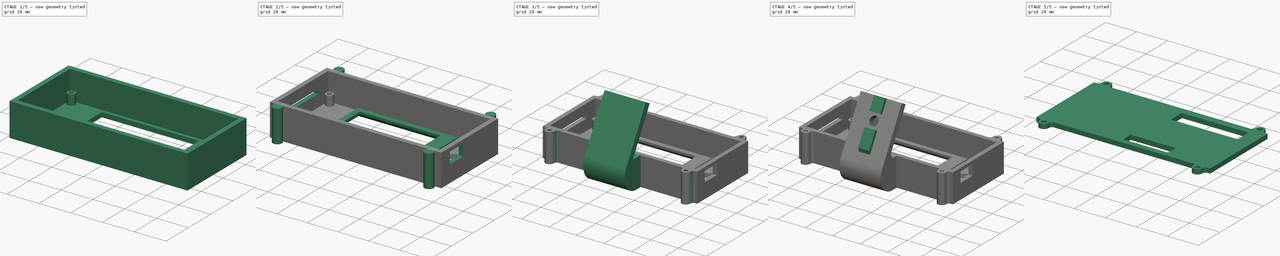
[diagram: build sequence overview — one tinted view per stage of 5, left to right]
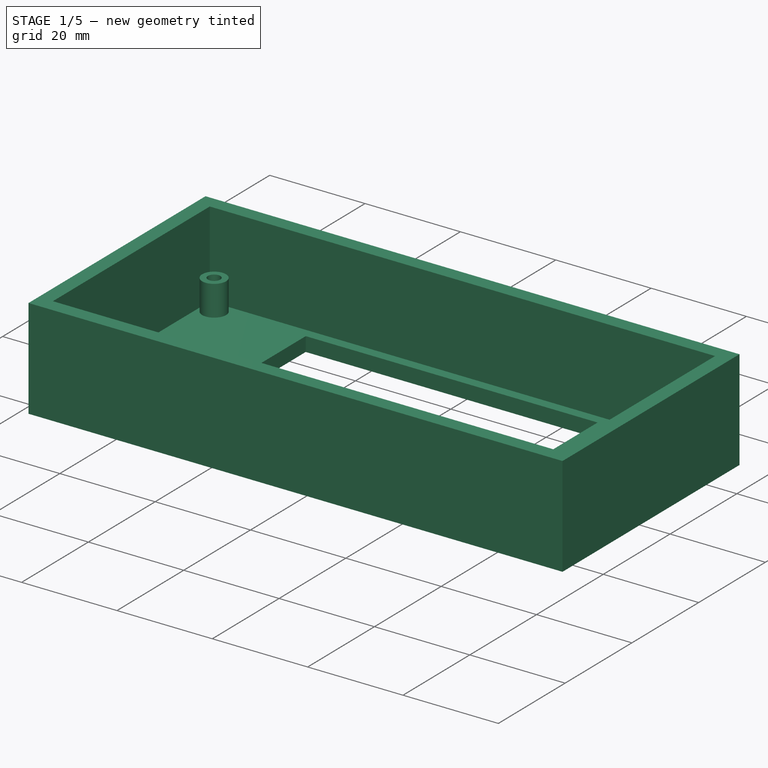
[diagram: stage 1 of 5 — iso view after this stage's code; geometry added in this stage tinted green]
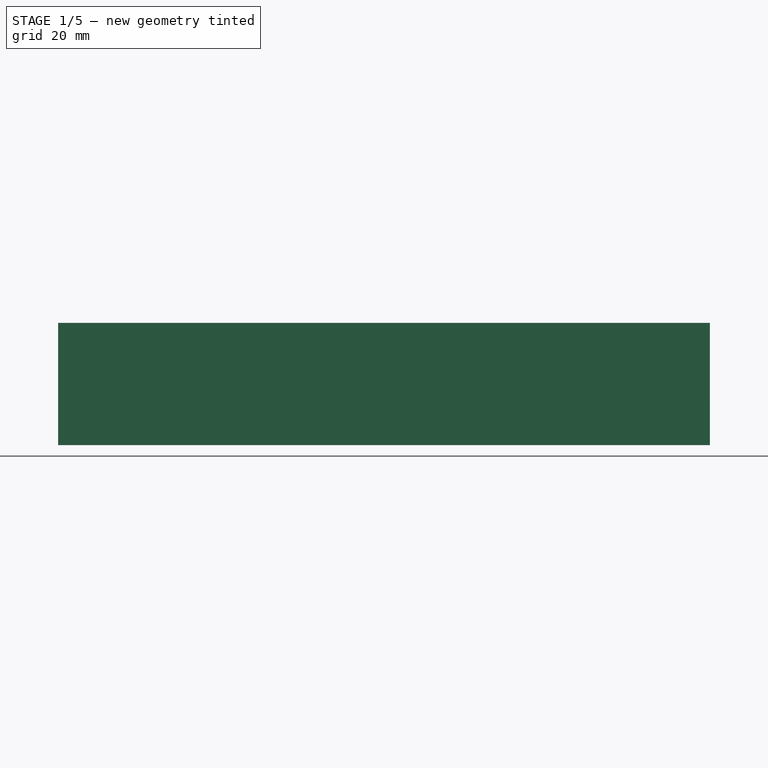
[diagram: stage 1 of 5 — front view after this stage's code; geometry added in this stage tinted green]
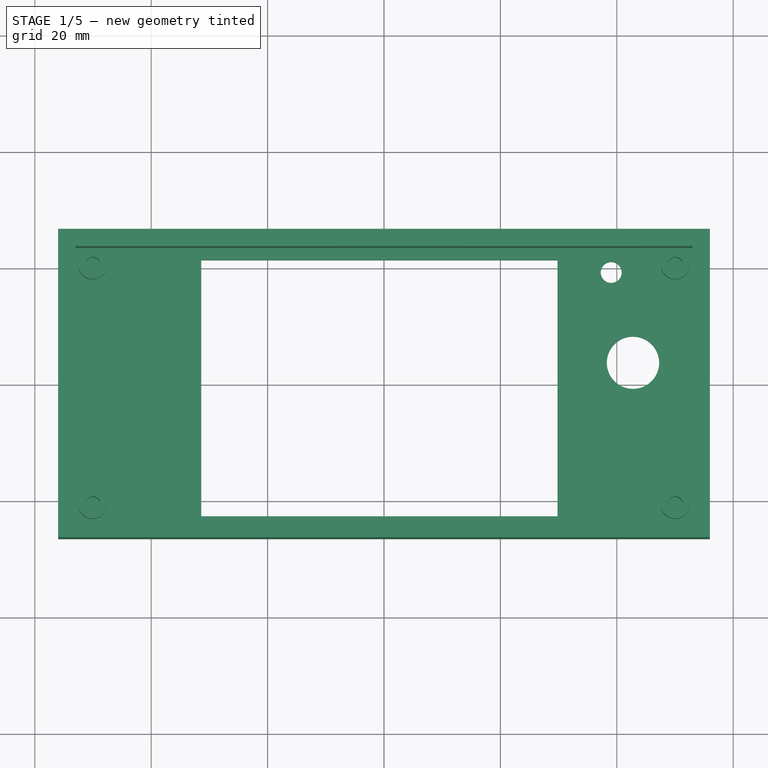
[diagram: stage 1 of 5 — top view after this stage's code; geometry added in this stage tinted green]
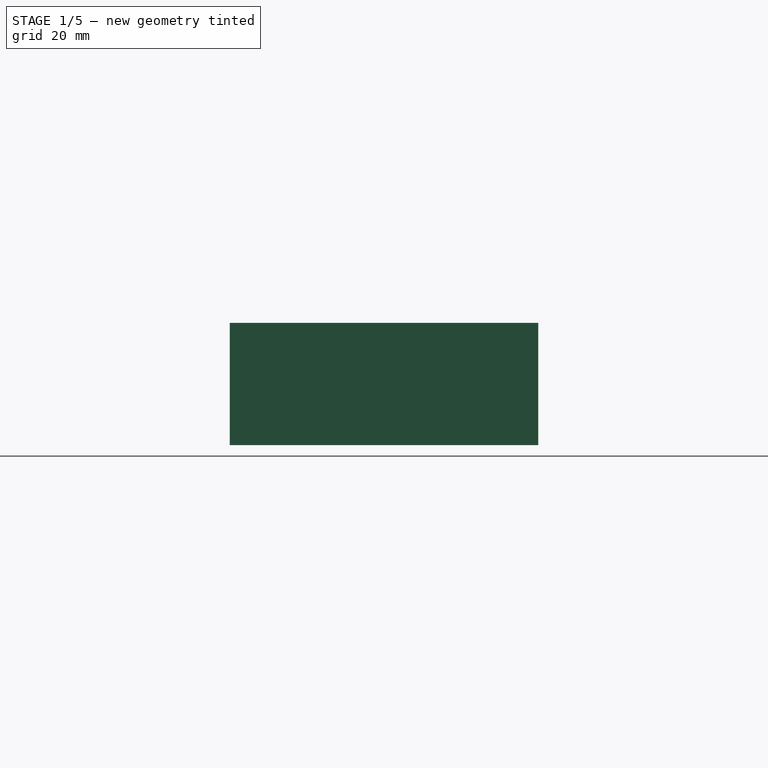
[diagram: stage 1 of 5 — right view after this stage's code; geometry added in this stage tinted green]
FCSTD DOCUMENT  (FreeCAD 0.19R)
Label: tftcover
License: All rights reserved
LicenseURL: http://en.wikipedia.org/wiki/All_rights_reserved
objects: Sketcher::SketchObject×18, PartDesign::Pocket×10, PartDesign::Pad×8, PartDesign::Fillet×4, PartDesign::Chamfer×2, PartDesign::Body×2, PartDesign::ShapeBinder×1
note: 69 computed .brp shape members not serialized (recipe doc carries the construction recipe); baked Part::Feature solids carry a one-line shape summary decoded from their .brp

FEATURE [Sketcher::SketchObject] Sketch
  FullyConstrained = true
  MapMode = 5
  Support = -> [XY_Plane]
  sketch-geometry (4):
    g0: LineSegment StartX=-56 StartY=26.5 StartZ=0 EndX=56 EndY=26.5 EndZ=0
    g1: LineSegment StartX=56 StartY=26.5 StartZ=0 EndX=56 EndY=-26.5 EndZ=0
    g2: LineSegment StartX=56 StartY=-26.5 StartZ=0 EndX=-56 EndY=-26.5 EndZ=0
    g3: LineSegment StartX=-56 StartY=-26.5 StartZ=0 EndX=-56 EndY=26.5 EndZ=0
  constraints (10):
    c: Coincident(g0,g1)
    c: Coincident(g1,g2)
    c: Coincident(g2,g3)
    c: Coincident(g3,g0)
    c: Horizontal(g2)
    c: Vertical(g3)
    c: Symmetric(g0,g0,g-2)
    c: Symmetric(g0,g1,g-1)
    c: DistanceY(g1,g1) = 53
    c: DistanceX(g0,g0) = 112
FEATURE [PartDesign::Pad] Pad
  Direction = (1,1,1)
  Length = 21
  Length2 = 100
  Profile = -> Sketch
  Type = 0
FEATURE [Sketcher::SketchObject] Sketch001
  ExternalGeometry = -> [Pad]
  FullyConstrained = true
  MapMode = 5
  Placement = pos=(0,0,21) rot=(0,0,1;0rad)
  Support = -> [Pad]
  sketch-geometry (4):
    g0: LineSegment StartX=-53 StartY=23.5 StartZ=0 EndX=53 EndY=23.5 EndZ=0
    g1: LineSegment StartX=53 StartY=23.5 StartZ=0 EndX=53 EndY=-23.5 EndZ=0
    g2: LineSegment StartX=53 StartY=-23.5 StartZ=0 EndX=-53 EndY=-23.5 EndZ=0
    g3: LineSegment StartX=-53 StartY=-23.5 StartZ=0 EndX=-53 EndY=23.5 EndZ=0
  constraints (10):
    c: Coincident(g0,g1)
    c: Coincident(g1,g2)
    c: Coincident(g2,g3)
    c: Coincident(g3,g0)
    c: Horizontal(g2)
    c: Vertical(g1)
    c: Symmetric(g0,g0,g-2)
    c: Symmetric(g0,g2,g-1)
    c: Distance(g0,g-3) = 3
    c: Distance(g-3,g3) = 3
FEATURE [PartDesign::Pocket] Pocket
  BaseFeature = -> Pad
  Length = 18
  Length2 = 100
  Profile = -> Sketch001
  Type = 0
FEATURE [Sketcher::SketchObject] Sketch002
  FullyConstrained = true
  MapMode = 5
  Placement = pos=(0,0,3) rot=(0,0,1;0rad)
  Support = -> [Pocket]
  sketch-geometry (8):
    g0: LineSegment StartX=-50.04 StartY=20.575 StartZ=0 EndX=50.04 EndY=20.575 EndZ=0
    g1: LineSegment StartX=50.04 StartY=20.575 StartZ=0 EndX=50.04 EndY=-20.575 EndZ=0
    g2: LineSegment StartX=50.04 StartY=-20.575 StartZ=0 EndX=-50.04 EndY=-20.575 EndZ=0
    g3: LineSegment StartX=-50.04 StartY=-20.575 StartZ=0 EndX=-50.04 EndY=20.575 EndZ=0
    g4: Circle CenterX=-50.04 CenterY=20.575 CenterZ=0 NormalX=0 NormalY=0 NormalZ=1 AngleXU=0 Radius=2.5
    g5: Circle CenterX=50.04 CenterY=20.575 CenterZ=0 NormalX=0 NormalY=0 NormalZ=1 AngleXU=0 Radius=2.5
    g6: Circle CenterX=-50.04 CenterY=-20.575 CenterZ=0 NormalX=0 NormalY=0 NormalZ=1 AngleXU=0 Radius=2.5
    g7: Circle CenterX=50.04 CenterY=-20.575 CenterZ=0 NormalX=0 NormalY=0 NormalZ=1 AngleXU=0 Radius=2.5
  constraints (18):
    c: Coincident(g0,g1)
    c: Coincident(g1,g2)
    c: Coincident(g2,g3)
    c: Coincident(g3,g0)
    c: Horizontal(g2)
    c: Vertical(g1)
    c: DistanceX(g0,g0) = 100.08
    c: Symmetric(g0,g0,g-2)
    c: Symmetric(g0,g2,g-1)
    c: DistanceY(g3,g3) = 41.15
    c: Coincident(g4,g0)
    c: Coincident(g5,g0)
    c: Coincident(g6,g2)
    c: Coincident(g7,g1)
    c: Radius(g6) = 2.5
    c: Equal(g6,g5)
    c: Equal(g6,g4)
    c: Equal(g6,g7)
FEATURE [PartDesign::Pad] Pad001
  BaseFeature = -> Pocket
  Direction = (1,1,1)
  Length = 6.4
  Length2 = 100
  Profile = -> Sketch002
  Type = 0
FEATURE [Sketcher::SketchObject] Sketch003
  ExternalGeometry = -> [Pad001]
  FullyConstrained = true
  MapMode = 5
  Placement = pos=(0,0,9.4) rot=(0,0,1;0rad)
  Support = -> [Pad001]
  sketch-geometry (4):
    g0: Circle CenterX=-50.04 CenterY=20.575 CenterZ=0 NormalX=0 NormalY=0 NormalZ=1 AngleXU=0 Radius=1.3
    g1: Circle CenterX=-50.04 CenterY=-20.575 CenterZ=0 NormalX=0 NormalY=0 NormalZ=1 AngleXU=0 Radius=1.3
    g2: Circle CenterX=50.04 CenterY=-20.575 CenterZ=0 NormalX=0 NormalY=0 NormalZ=1 AngleXU=0 Radius=1.3
    g3: Circle CenterX=50.04 CenterY=20.575 CenterZ=0 NormalX=0 NormalY=0 NormalZ=1 AngleXU=0 Radius=1.3
  constraints (8):
    c: Coincident(g0,g-3)
    c: Coincident(g1,g-4)
    c: Coincident(g2,g-6)
    c: Coincident(g3,g-5)
    c: Radius(g2) = 1.3
    c: Equal(g2,g3)
    c: Equal(g2,g0)
    c: Equal(g2,g1)
FEATURE [PartDesign::Pocket] Pocket001
  BaseFeature = -> Pad001
  Length = 8
  Length2 = 100
  Profile = -> Sketch003
  Type = 0
FEATURE [Sketcher::SketchObject] Sketch005
  FullyConstrained = false
  MapMode = 5
  Placement = pos=(0,0,0) rot=(1,0,0;3.14159rad)
  Support = -> [Pocket001]
  sketch-geometry (16):
    g0: LineSegment StartX=-52.5 StartY=23 StartZ=0 EndX=52.5 EndY=23 EndZ=0
    g1: LineSegment StartX=52.5 StartY=23 StartZ=0 EndX=52.5 EndY=-23 EndZ=0
    g2: LineSegment StartX=52.5 StartY=-23 StartZ=0 EndX=-52.5 EndY=-23 EndZ=0
    g3: LineSegment StartX=-52.5 StartY=-23 StartZ=0 EndX=-52.5 EndY=23 EndZ=0
    g4: LineSegment StartX=-31.4 StartY=22.6 StartZ=0 EndX=29.82 EndY=22.6 EndZ=0
    g5: LineSegment StartX=29.82 StartY=22.6 StartZ=0 EndX=29.82 EndY=-21.4 EndZ=0
    g6: LineSegment StartX=29.82 StartY=-21.4 StartZ=0 EndX=-31.4 EndY=-21.4 EndZ=0
    g7: LineSegment StartX=-31.4 StartY=-21.4 StartZ=0 EndX=-31.4 EndY=22.6 EndZ=0
    g8: Circle CenterX=39.04 CenterY=-19.31 CenterZ=0 NormalX=0 NormalY=0 NormalZ=1 AngleXU=0 Radius=1.8
    g9: Circle CenterX=42.78 CenterY=-3.8 CenterZ=0 NormalX=0 NormalY=0 NormalZ=1 AngleXU=0 Radius=4.5
    g10: LineSegment StartX=36.78 StartY=2.2 StartZ=0 EndX=48.78 EndY=2.2 EndZ=0
    g11: LineSegment StartX=48.78 StartY=2.2 StartZ=0 EndX=48.78 EndY=-9.8 EndZ=0
    g12: LineSegment StartX=48.78 StartY=-9.8 StartZ=0 EndX=36.78 EndY=-9.8 EndZ=0
    g13: LineSegment StartX=36.78 StartY=-9.8 StartZ=0 EndX=36.78 EndY=2.2 EndZ=0
    g14: LineSegment StartX=42.78 StartY=2.2 StartZ=0 EndX=42.78 EndY=-3.8 EndZ=0
    g15: LineSegment StartX=48.78 StartY=-3.8 StartZ=0 EndX=42.78 EndY=-3.8 EndZ=0
  constraints (43):
    c: Coincident(g0,g1)
    c: Coincident(g1,g2)
    c: Coincident(g2,g3)
    c: Coincident(g3,g0)
    c: Horizontal(g2)
    c: Vertical(g1)
    c: Symmetric(g0,g2,g-1)
    c: Symmetric(g0,g0,g-2)
    c: DistanceX(g0,g0) = 105
    c: DistanceY(g3,g3) = 46
    c: Coincident(g4,g5)
    c: Coincident(g5,g6)
    c: Coincident(g6,g7)
    c: Coincident(g7,g4)
    c: Horizontal(g4)
    c: Horizontal(g6)
    c: Vertical(g7)
    c: DistanceY(g7,g7) = 44
    c: Distance(g5,g1) = 22.68
    c: Distance(g6,g1) = 83.9
    c: Radius(g8) = 1.8
    c: Distance(g8,g1) = 13.46
    c: Distance(g8,g2) = 3.69
    c: Distance(g6,g2) = 1.6
    c: Radius(g9) = 4.5
    c: Coincident(g10,g11)
    c: Coincident(g11,g12)
    c: Coincident(g12,g13)
    c: Coincident(g13,g10)
    c: Horizontal(g10)
    c: Horizontal(g12)
    c: Vertical(g11)
    c: Vertical(g13)
    c: DistanceX(g10,g10) = 12
    c: Equal(g11,g10)
    c: PointOnObject(g14,g10)
    c: PointOnObject(g15,g11)
    c: Symmetric(g10,g10,g14)
    c: Symmetric(g11,g10,g15)
    c: Coincident(g14,g15)
    c: Coincident(g14,g9)
    c: Distance(g11,g0) = 32.8
    c: Distance(g10,g1) = 15.72
FEATURE [PartDesign::Pocket] Pocket002
  BaseFeature = -> Pocket001
  Length = 5
  Length2 = 100
  Profile = -> Sketch005
  Type = 0
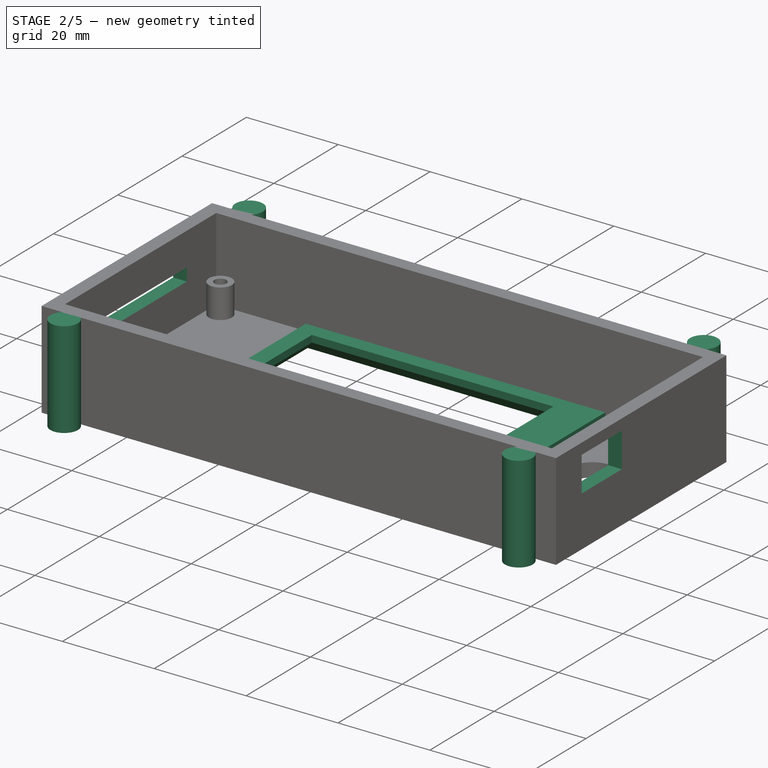
[diagram: stage 2 of 5 — iso view after this stage's code; geometry added in this stage tinted green]
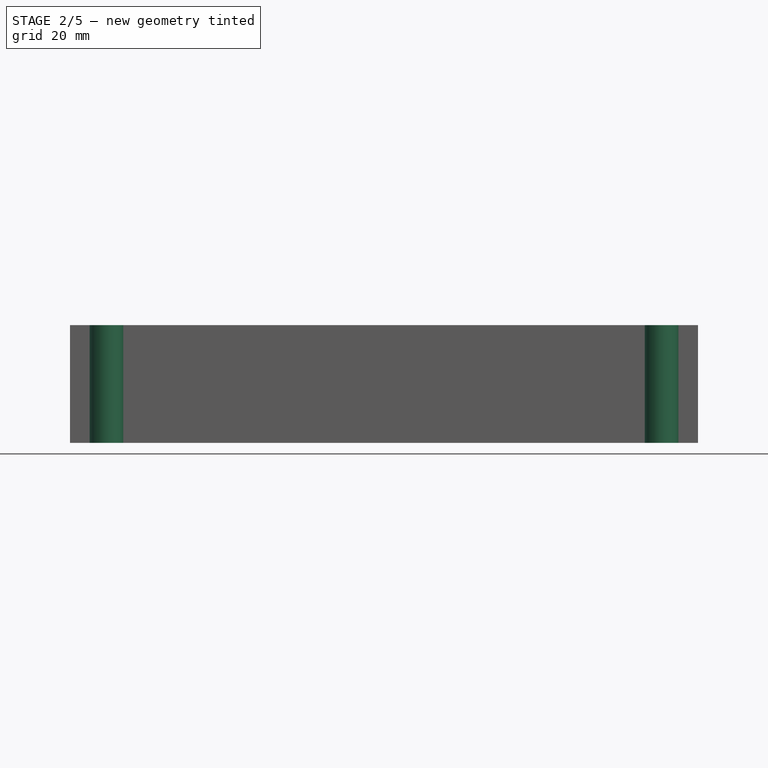
[diagram: stage 2 of 5 — front view after this stage's code; geometry added in this stage tinted green]
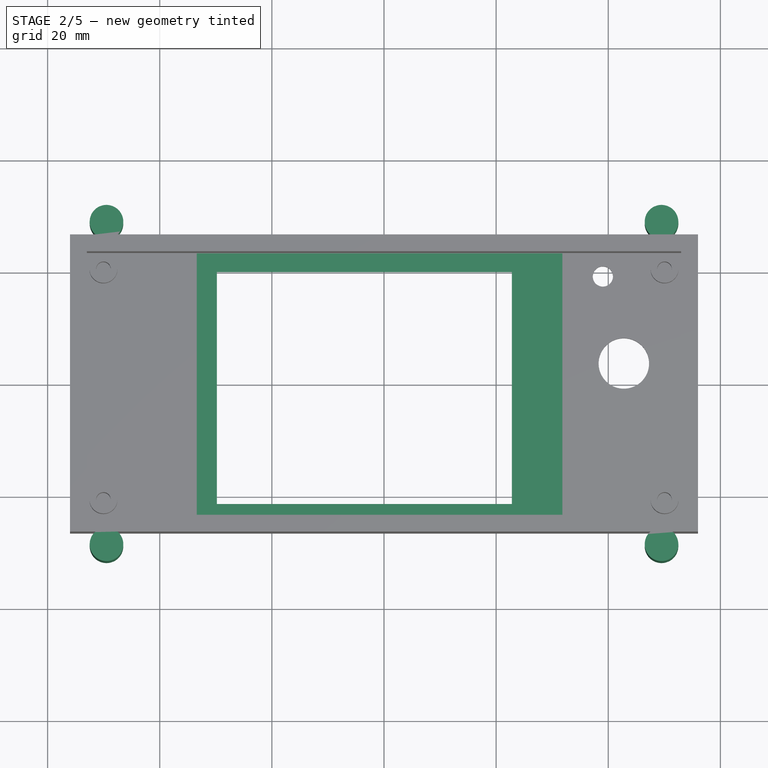
[diagram: stage 2 of 5 — top view after this stage's code; geometry added in this stage tinted green]
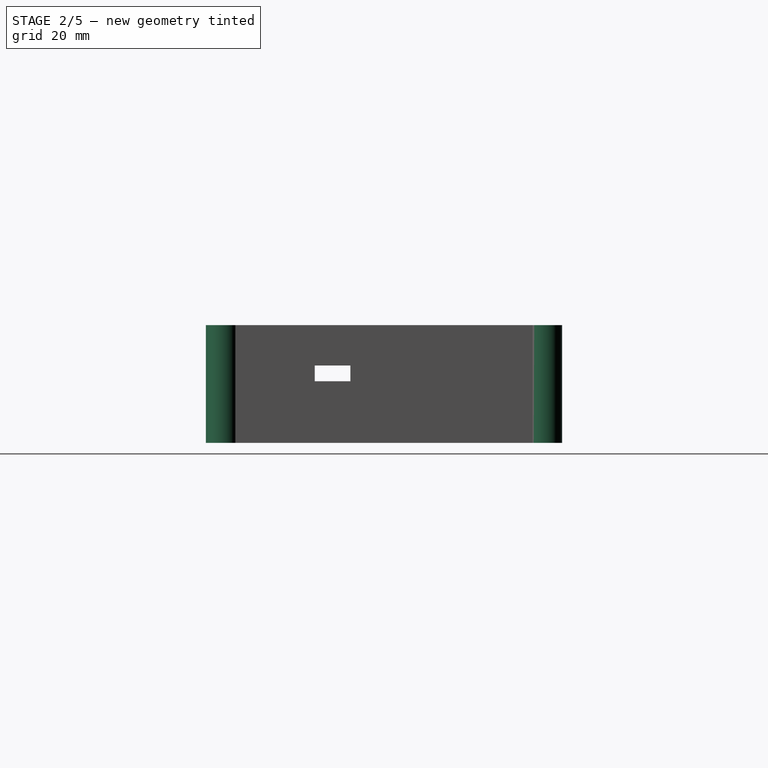
[diagram: stage 2 of 5 — right view after this stage's code; geometry added in this stage tinted green]
FEATURE [Sketcher::SketchObject] Sketch006
  ExternalGeometry = -> [Pocket002]
  FullyConstrained = true
  MapMode = 5
  Placement = pos=(53,0,0) rot=(0.57735,-0.57735,-0.57735;2.0944rad)
  Support = -> [Pocket002]
  sketch-geometry (8):
    g0: LineSegment StartX=-23 StartY=11 StartZ=0 EndX=23 EndY=11 EndZ=0
    g1: LineSegment StartX=23 StartY=11 StartZ=0 EndX=23 EndY=9.4 EndZ=0
    g2: LineSegment StartX=23 StartY=9.4 StartZ=0 EndX=-23 EndY=9.4 EndZ=0
    g3: LineSegment StartX=-23 StartY=9.4 StartZ=0 EndX=-23 EndY=11 EndZ=0
    g4: LineSegment StartX=6 StartY=18.6 StartZ=0 EndX=18.5 EndY=18.6 EndZ=0
    g5: LineSegment StartX=18.5 StartY=18.6 StartZ=0 EndX=18.5 EndY=11 EndZ=0
    g6: LineSegment StartX=18.5 StartY=11 StartZ=0 EndX=6 EndY=11 EndZ=0
    g7: LineSegment StartX=6 StartY=11 StartZ=0 EndX=6 EndY=18.6 EndZ=0
  constraints (23):
    c: Coincident(g0,g1)
    c: Coincident(g1,g2)
    c: Coincident(g2,g3)
    c: Coincident(g3,g0)
    c: Horizontal(g2)
    c: Vertical(g1)
    c: Vertical(g3)
    c: DistanceY(g3,g3) = 1.6
    c: Distance(g1,g-3) = 6.4
    c: Symmetric(g0,g0,g-2)
    c: DistanceX(g0,g0) = 46
    c: Coincident(g4,g5)
    c: Coincident(g5,g6)
    c: Coincident(g6,g7)
    c: Coincident(g7,g4)
    c: Horizontal(g4)
    c: Horizontal(g6)
    c: Vertical(g5)
    c: Vertical(g7)
    c: PointOnObject(g5,g0)
    c: Distance(g4,g1) = 4.5
    c: Distance(g4,g1) = 17
    c: DistanceY(g7,g7) = 7.6
FEATURE [PartDesign::Pocket] Pocket003
  BaseFeature = -> Pocket002
  Length = 5
  Length2 = 100
  Profile = -> Sketch006
  Type = 0
FEATURE [Sketcher::SketchObject] Sketch007
  ExternalGeometry = -> [Pocket003]
  FullyConstrained = true
  MapMode = 5
  Placement = pos=(-53,0,0) rot=(0.57735,0.57735,0.57735;2.0944rad)
  Support = -> [Pocket003]
  sketch-geometry (8):
    g0: LineSegment StartX=-23 StartY=11 StartZ=0 EndX=23 EndY=11 EndZ=0
    g1: LineSegment StartX=23 StartY=11 StartZ=0 EndX=23 EndY=9.4 EndZ=0
    g2: LineSegment StartX=23 StartY=9.4 StartZ=0 EndX=-23 EndY=9.4 EndZ=0
    g3: LineSegment StartX=-23 StartY=9.4 StartZ=0 EndX=-23 EndY=11 EndZ=0
    g4: LineSegment StartX=-12.35 StartY=13.8 StartZ=0 EndX=14.4 EndY=13.8 EndZ=0
    g5: LineSegment StartX=14.4 StartY=13.8 StartZ=0 EndX=14.4 EndY=11 EndZ=0
    g6: LineSegment StartX=14.4 StartY=11 StartZ=0 EndX=-12.35 EndY=11 EndZ=0
    g7: LineSegment StartX=-12.35 StartY=11 StartZ=0 EndX=-12.35 EndY=13.8 EndZ=0
  constraints (23):
    c: Coincident(g0,g1)
    c: Coincident(g1,g2)
    c: Coincident(g2,g3)
    c: Coincident(g3,g0)
    c: Horizontal(g2)
    c: Vertical(g1)
    c: Vertical(g3)
    c: Symmetric(g0,g0,g-2)
    c: DistanceX(g0,g0) = 46
    c: DistanceY(g1,g1) = 1.6
    c: Distance(g1,g-3) = 6.4
    c: Coincident(g4,g5)
    c: Coincident(g5,g6)
    c: Coincident(g6,g7)
    c: Coincident(g7,g4)
    c: Horizontal(g4)
    c: Horizontal(g6)
    c: Vertical(g5)
    c: Vertical(g7)
    c: PointOnObject(g5,g0)
    c: Distance(g5,g1) = 8.6
    c: Distance(g6,g1) = 35.35
    c: DistanceY(g7,g7) = 2.8
FEATURE [PartDesign::Pocket] Pocket004
  BaseFeature = -> Pocket003
  Length = 5
  Length2 = 100
  Profile = -> Sketch007
  Type = 0
FEATURE [Sketcher::SketchObject] Sketch008
  ExternalGeometry = -> [Pocket004]
  FullyConstrained = true
  MapMode = 5
  Placement = pos=(0,0,0) rot=(1,0,0;3.14159rad)
  Support = -> [Pocket004]
  sketch-geometry (8):
    g0: LineSegment StartX=-33.4 StartY=24.6 StartZ=0 EndX=31.82 EndY=24.6 EndZ=0
    g1: LineSegment StartX=31.82 StartY=24.6 StartZ=0 EndX=31.82 EndY=-23.4 EndZ=0
    g2: LineSegment StartX=31.82 StartY=-23.4 StartZ=0 EndX=-33.4 EndY=-23.4 EndZ=0
    g3: LineSegment StartX=-33.4 StartY=-23.4 StartZ=0 EndX=-33.4 EndY=24.6 EndZ=0
    g4: LineSegment StartX=-29.8 StartY=21.3 StartZ=0 EndX=22.82 EndY=21.3 EndZ=0
    g5: LineSegment StartX=22.82 StartY=21.3 StartZ=0 EndX=22.82 EndY=-20.1 EndZ=0
    g6: LineSegment StartX=22.82 StartY=-20.1 StartZ=0 EndX=-29.8 EndY=-20.1 EndZ=0
    g7: LineSegment StartX=-29.8 StartY=-20.1 StartZ=0 EndX=-29.8 EndY=21.3 EndZ=0
  constraints (24):
    c: Coincident(g0,g1)
    c: Coincident(g1,g2)
    c: Coincident(g2,g3)
    c: Coincident(g3,g0)
    c: Horizontal(g0)
    c: Horizontal(g2)
    c: Vertical(g1)
    c: Vertical(g3)
    c: Distance(g0,g-3) = 2
    c: Distance(g-6,g3) = 2
    c: Distance(g-4,g1) = 2
    c: Distance(g-5,g2) = 2
    c: Coincident(g4,g5)
    c: Coincident(g5,g6)
    c: Coincident(g6,g7)
    c: Coincident(g7,g4)
    c: Horizontal(g4)
    c: Horizontal(g6)
    c: Vertical(g5)
    c: Vertical(g7)
    c: Distance(g6,g-6) = 1.6
    c: Distance(g4,g-3) = 1.3
    c: Distance(g6,g-5) = 1.3
    c: Distance(g-5,g5) = 7
FEATURE [PartDesign::Pad] Pad002
  BaseFeature = -> Pocket004
  Direction = (1,1,1)
  Length = 4.5
  Length2 = 100
  Profile = -> Sketch008
  Refine = true
  Reversed = true
  Type = 0
FEATURE [PartDesign::Chamfer] Chamfer
  Angle = 45
  Base = -> Pad002 [Edge89,Edge85,Edge90,Edge87]
  BaseFeature = -> Pad002
  ChamferType = 0
  FlipDirection = false
  Size = 3
  Size2 = 1
  SupportTransform = false
FEATURE [Sketcher::SketchObject] Sketch009
  ExternalGeometry = -> [Chamfer]
  FullyConstrained = false
  MapMode = 5
  Placement = pos=(0,0,0) rot=(1,0,0;3.14159rad)
  Support = -> [Chamfer]
  sketch-geometry (4):
    g0: Circle CenterX=-49.5 CenterY=28.7665 CenterZ=0 NormalX=0 NormalY=0 NormalZ=1 AngleXU=0 Radius=3
    g1: Circle CenterX=49.5 CenterY=28.7665 CenterZ=0 NormalX=0 NormalY=0 NormalZ=1 AngleXU=0 Radius=3
    g2: Circle CenterX=-49.5 CenterY=-28.7665 CenterZ=0 NormalX=0 NormalY=0 NormalZ=1 AngleXU=0 Radius=3
    g3: Circle CenterX=49.5 CenterY=-28.7665 CenterZ=0 NormalX=0 NormalY=0 NormalZ=1 AngleXU=0 Radius=3
  constraints (6):
    c: Symmetric(g3,g2,g-2)
    c: Symmetric(g0,g1,g-2)
    c: Radius(g2) = 3
    c: Equal(g2,g0)
    c: Symmetric(g1,g3,g-1)
    c: Distance(g0,g1) = 99
FEATURE [PartDesign::Pad] Pad003
  BaseFeature = -> Chamfer
  Direction = (1,1,1)
  Length = 21
  Length2 = 100
  Profile = -> Sketch009
  Refine = true
  Reversed = true
  Type = 0
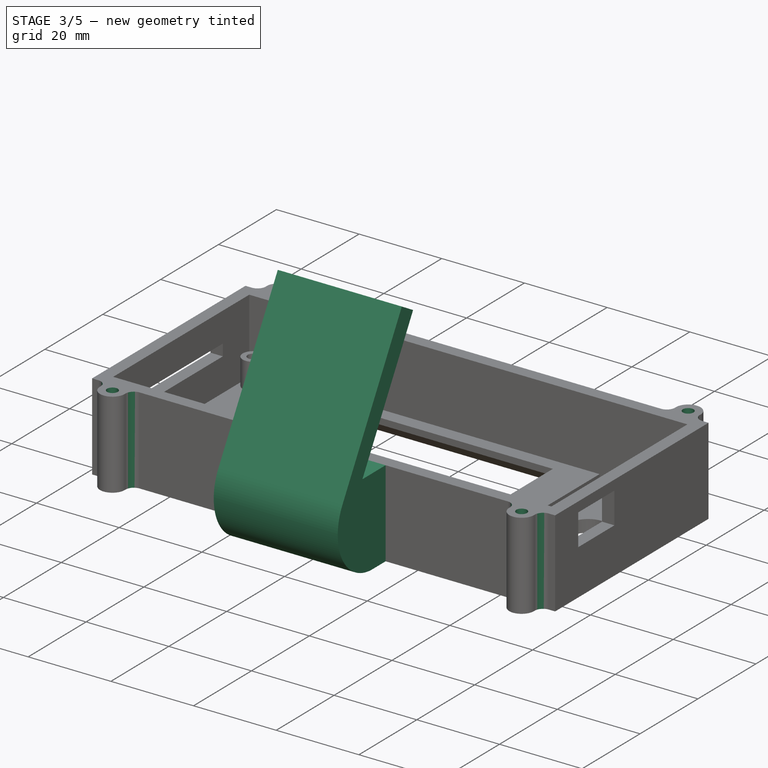
[diagram: stage 3 of 5 — iso view after this stage's code; geometry added in this stage tinted green]
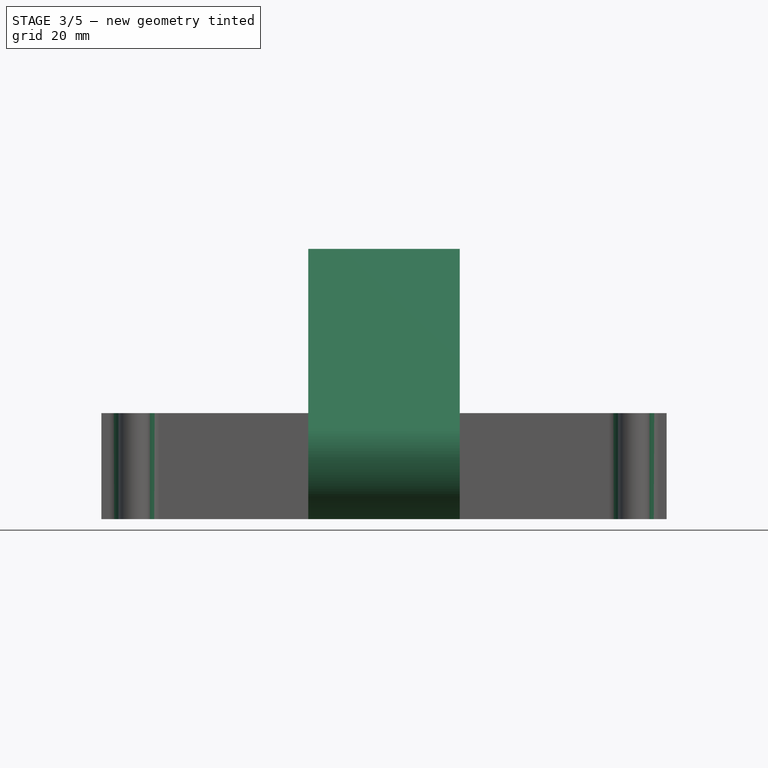
[diagram: stage 3 of 5 — front view after this stage's code; geometry added in this stage tinted green]
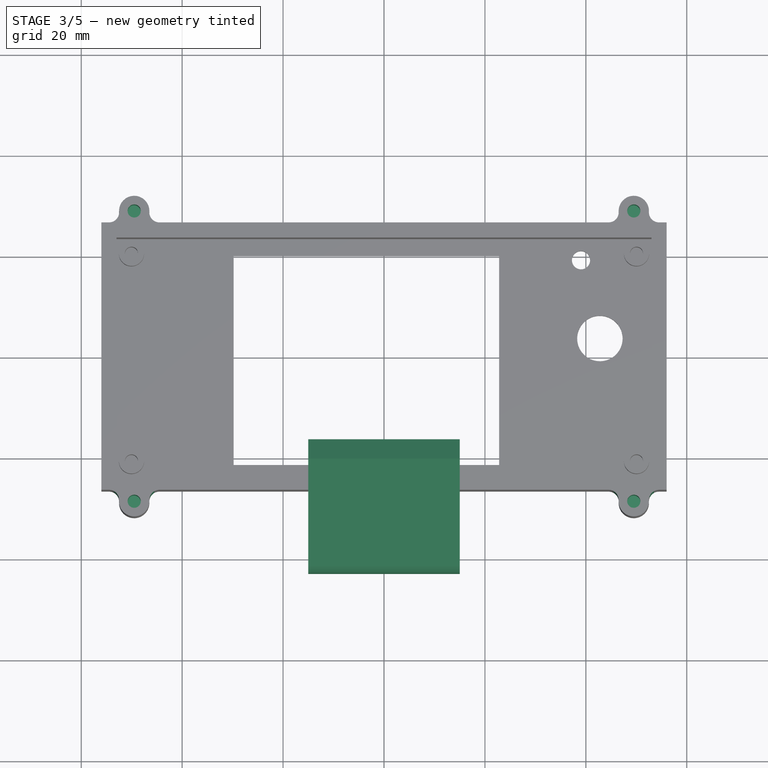
[diagram: stage 3 of 5 — top view after this stage's code; geometry added in this stage tinted green]
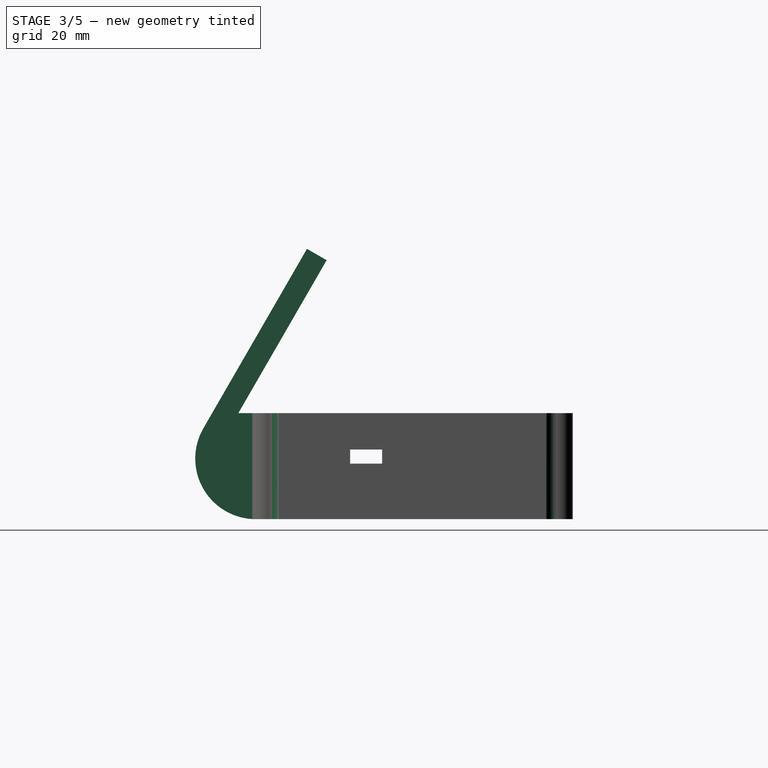
[diagram: stage 3 of 5 — right view after this stage's code; geometry added in this stage tinted green]
FEATURE [PartDesign::Fillet] Fillet
  Base = -> Pad003 [Edge95,Edge84,Edge132,Edge131,Edge129,Edge74,Edge134,Edge76]
  BaseFeature = -> Pad003
  Radius = 2
  SupportTransform = false
FEATURE [Sketcher::SketchObject] Sketch010
  ExternalGeometry = -> [Fillet]
  FullyConstrained = true
  MapMode = 5
  Placement = pos=(0,0,21) rot=(0,0,1;0rad)
  Support = -> [Fillet]
  sketch-geometry (4):
    g0: Circle CenterX=-49.5 CenterY=28.7665 CenterZ=0 NormalX=0 NormalY=0 NormalZ=1 AngleXU=0 Radius=1.3
    g1: Circle CenterX=49.5 CenterY=28.7665 CenterZ=0 NormalX=0 NormalY=0 NormalZ=1 AngleXU=0 Radius=1.3
    g2: Circle CenterX=-49.5 CenterY=-28.7665 CenterZ=0 NormalX=0 NormalY=0 NormalZ=1 AngleXU=0 Radius=1.3
    g3: Circle CenterX=49.5 CenterY=-28.7665 CenterZ=0 NormalX=0 NormalY=0 NormalZ=1 AngleXU=0 Radius=1.3
  constraints (8):
    c: Coincident(g0,g-3)
    c: Coincident(g1,g-5)
    c: Coincident(g2,g-4)
    c: Coincident(g3,g-6)
    c: Radius(g0) = 1.3
    c: Equal(g0,g1)
    c: Equal(g0,g2)
    c: Equal(g0,g3)
FEATURE [PartDesign::Pocket] Pocket005
  BaseFeature = -> Fillet
  Length = 10
  Length2 = 100
  Profile = -> Sketch010
  Type = 0
FEATURE [Sketcher::SketchObject] Sketch011
  ExternalGeometry = -> [Pocket005]
  FullyConstrained = true
  MapMode = 5
  Placement = pos=(0,0,0) rot=(0.57735,0.57735,0.57735;2.0944rad)
  Support = -> [YZ_Plane]
  sketch-geometry (6):
    g0: LineSegment StartX=-26.5 StartY=0 StartZ=0 EndX=-51.8205 EndY=0 EndZ=0
    g1: LineSegment StartX=-51.8205 StartY=0 StartZ=0 EndX=-20.8971 EndY=53.5609 EndZ=0
    g2: LineSegment StartX=-20.8971 StartY=53.5609 StartZ=0 EndX=-17 EndY=51.3109 EndZ=0
    g3: LineSegment StartX=-17 StartY=51.3109 StartZ=0 EndX=-34.5 EndY=21 EndZ=0
    g4: LineSegment StartX=-34.5 StartY=21 StartZ=0 EndX=-26.5 EndY=21 EndZ=0
    g5: LineSegment StartX=-26.5 StartY=21 StartZ=0 EndX=-26.5 EndY=0 EndZ=0
  constraints (18):
    c: PointOnObject(g0,g-3)
    c: PointOnObject(g0,g-1)
    c: Horizontal(g0)
    c: Coincident(g0,g1)
    c: Coincident(g1,g2)
    c: Coincident(g2,g3)
    c: Coincident(g3,g4)
    c: PointOnObject(g4,g-3)
    c: Horizontal(g4)
    c: Coincident(g4,g5)
    c: Coincident(g5,g0)
    c: Angle(g4,g3) = 1.0472
    c: Parallel(g1,g3)
    c: Perpendicular(g2,g1)
    c: Distance(g2) = 4.5
    c: PointOnObject(g4,g-4)
    c: Distance(g3) = 35
    c: DistanceX(g4,g4) = 8
FEATURE [PartDesign::Pad] Pad004
  BaseFeature = -> Pocket005
  Direction = (1,1,1)
  Length = 30
  Length2 = 100
  Midplane = true
  Profile = -> Sketch011
  Type = 0
FEATURE [PartDesign::Fillet] Fillet001
  Base = -> Pad004 [Edge86]
  BaseFeature = -> Pad004
  Radius = 12
  SupportTransform = false
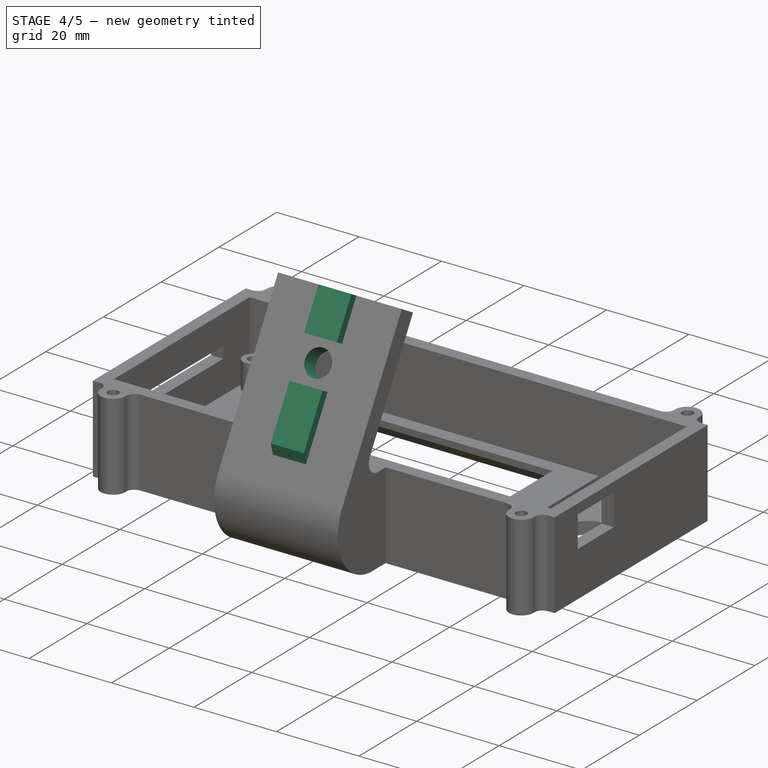
[diagram: stage 4 of 5 — iso view after this stage's code; geometry added in this stage tinted green]
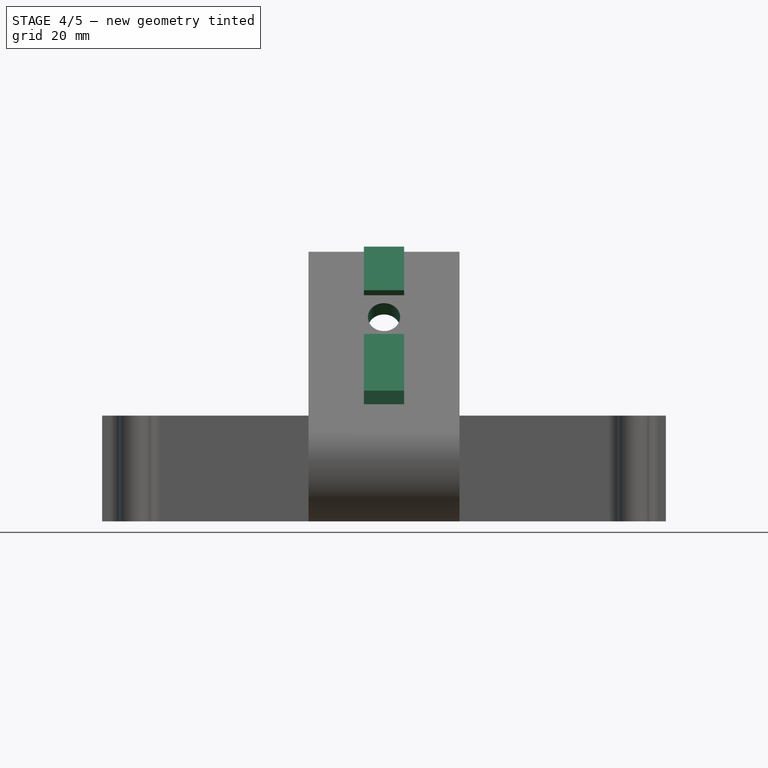
[diagram: stage 4 of 5 — front view after this stage's code; geometry added in this stage tinted green]
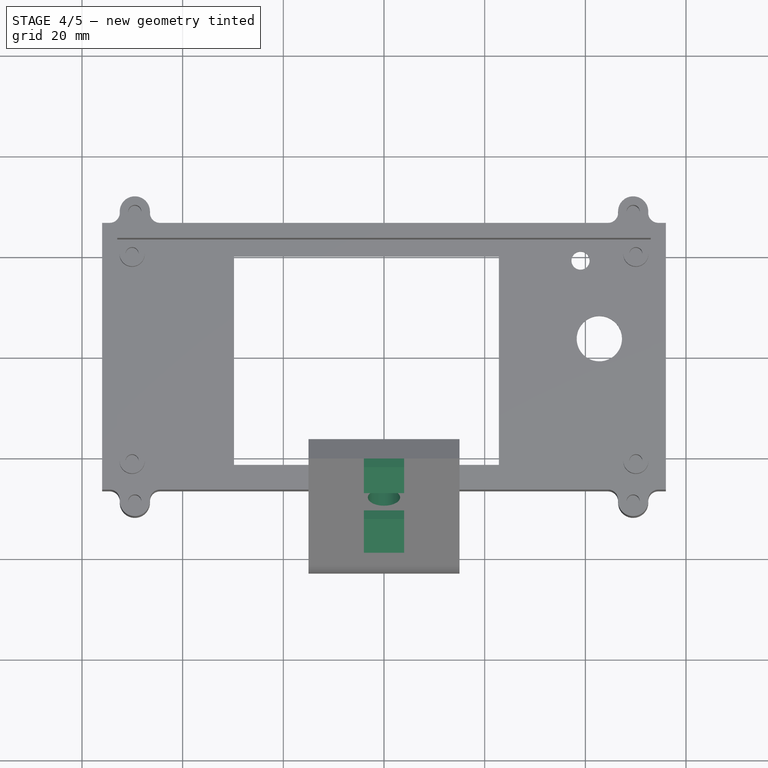
[diagram: stage 4 of 5 — top view after this stage's code; geometry added in this stage tinted green]
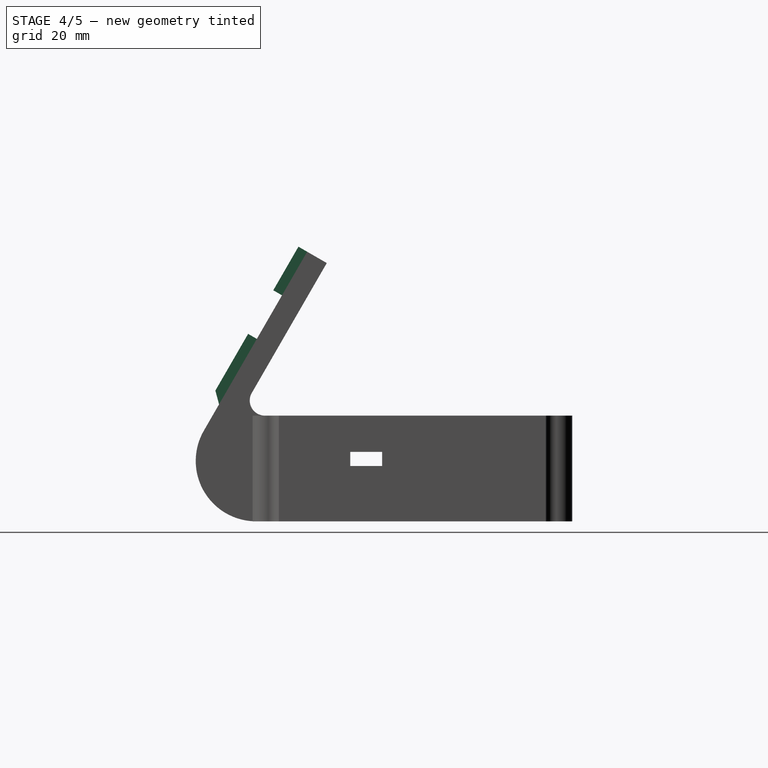
[diagram: stage 4 of 5 — right view after this stage's code; geometry added in this stage tinted green]
FEATURE [PartDesign::Fillet] Fillet002
  Base = -> Fillet001 [Edge52]
  BaseFeature = -> Fillet001
  Radius = 3
  SupportTransform = false
FEATURE [Sketcher::SketchObject] Sketch012
  ExternalGeometry = -> [Fillet002]
  FullyConstrained = true
  MapMode = 5
  Placement = pos=(-1.49e-14,-38.8654,22.4389) rot=(1,0,0;1.0472rad)
  Support = -> [Fillet002]
  sketch-geometry (4):
    g0: LineSegment StartX=-4 StartY=35.9365 StartZ=0 EndX=4 EndY=35.9365 EndZ=0
    g1: LineSegment StartX=4 StartY=35.9365 StartZ=0 EndX=4 EndY=0.936533 EndZ=0
    g2: LineSegment StartX=4 StartY=0.936533 StartZ=0 EndX=-4 EndY=0.936533 EndZ=0
    g3: LineSegment StartX=-4 StartY=0.936533 StartZ=0 EndX=-4 EndY=35.9365 EndZ=0
  constraints (11):
    c: Coincident(g0,g1)
    c: Coincident(g1,g2)
    c: Coincident(g2,g3)
    c: Coincident(g3,g0)
    c: Horizontal(g2)
    c: Vertical(g1)
    c: Vertical(g3)
    c: PointOnObject(g0,g-3)
    c: Symmetric(g0,g0,g-2)
    c: DistanceX(g0,g0) = 8
    c: Distance(g1) = 35
FEATURE [PartDesign::Pad] Pad005
  BaseFeature = -> Fillet002
  Direction = (1,1,1)
  Length = 2
  Length2 = 100
  Profile = -> Sketch012
  Type = 0
FEATURE [Sketcher::SketchObject] Sketch013
  ExternalGeometry = -> [Pad005]
  FullyConstrained = true
  MapMode = 5
  Placement = pos=(-1.89e-14,-40.5974,23.4389) rot=(1,0,0;1.0472rad)
  Support = -> [Pad005]
  sketch-geometry (4):
    g0: LineSegment StartX=-4 StartY=25.9365 StartZ=0 EndX=4 EndY=25.9365 EndZ=0
    g1: LineSegment StartX=4 StartY=25.9365 StartZ=0 EndX=4 EndY=15.9365 EndZ=0
    g2: LineSegment StartX=4 StartY=15.9365 StartZ=0 EndX=-4 EndY=15.9365 EndZ=0
    g3: LineSegment StartX=-4 StartY=15.9365 StartZ=0 EndX=-4 EndY=25.9365 EndZ=0
  constraints (12):
    c: Coincident(g0,g1)
    c: Coincident(g1,g2)
    c: Coincident(g2,g3)
    c: Coincident(g3,g0)
    c: Horizontal(g0)
    c: Horizontal(g2)
    c: Vertical(g1)
    c: Vertical(g3)
    c: PointOnObject(g0,g-6)
    c: PointOnObject(g1,g-5)
    c: Distance(g0,g-5) = 10
    c: DistanceY(g1,g1) = 10
FEATURE [PartDesign::Pocket] Pocket006
  BaseFeature = -> Pad005
  Length = 2
  Length2 = 100
  Profile = -> Sketch013
  Refine = true
  Type = 0
FEATURE [PartDesign::Chamfer] Chamfer001
  Angle = 45
  Base = -> Pocket006 [Edge223]
  BaseFeature = -> Pocket006
  ChamferType = 0
  FlipDirection = false
  Size = 1.99
  Size2 = 1
  SupportTransform = false
FEATURE [Sketcher::SketchObject] Sketch014
  ExternalGeometry = -> [Chamfer001]
  FullyConstrained = true
  MapMode = 5
  Placement = pos=(-1.63e-14,-38.8654,22.4389) rot=(1,0,0;1.0472rad)
  Support = -> [Chamfer001]
  sketch-geometry (1):
    g0: Circle CenterX=0 CenterY=20.9365 CenterZ=0 NormalX=0 NormalY=0 NormalZ=1 AngleXU=0 Radius=3.2
  constraints (3):
    c: PointOnObject(g0,g-2)
    c: Distance(g0,g-3) = 5
    c: Radius(g0) = 3.2
FEATURE [PartDesign::Pocket] Pocket007
  BaseFeature = -> Chamfer001
  Length = 5
  Length2 = 100
  Profile = -> Sketch014
  Type = 0
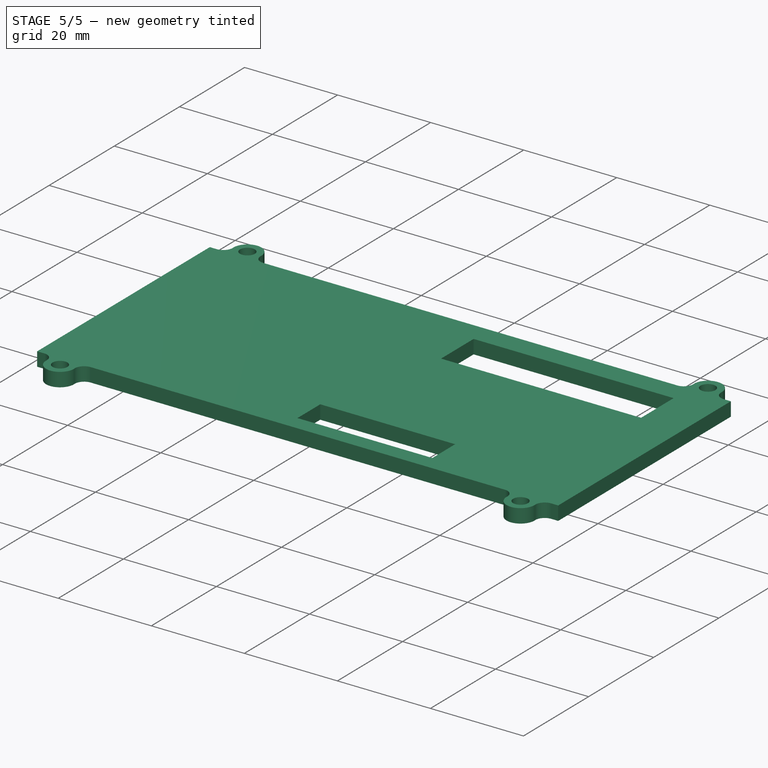
[diagram: stage 5 of 5 — iso view after this stage's code; geometry added in this stage tinted green]
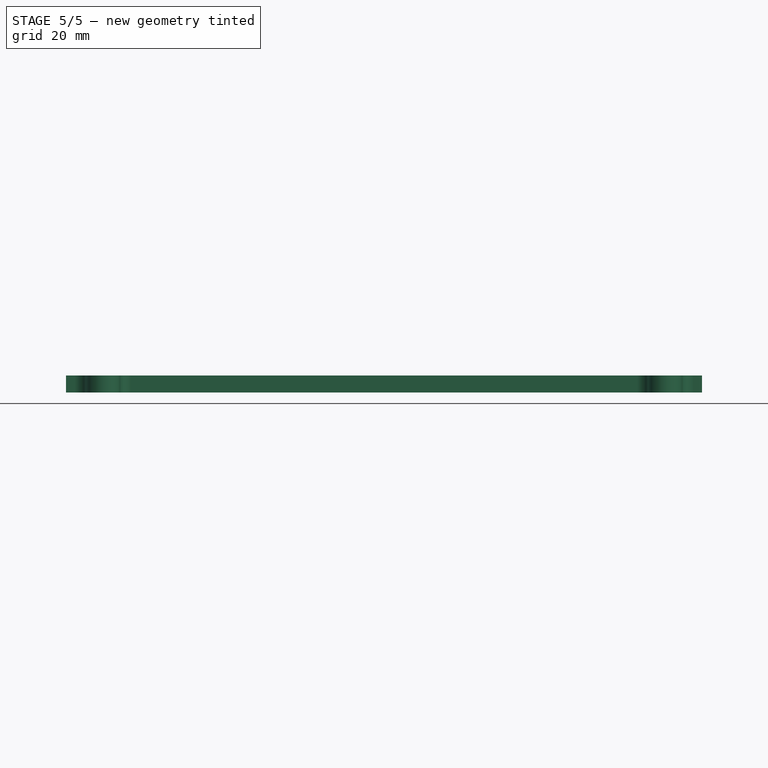
[diagram: stage 5 of 5 — front view after this stage's code; geometry added in this stage tinted green]
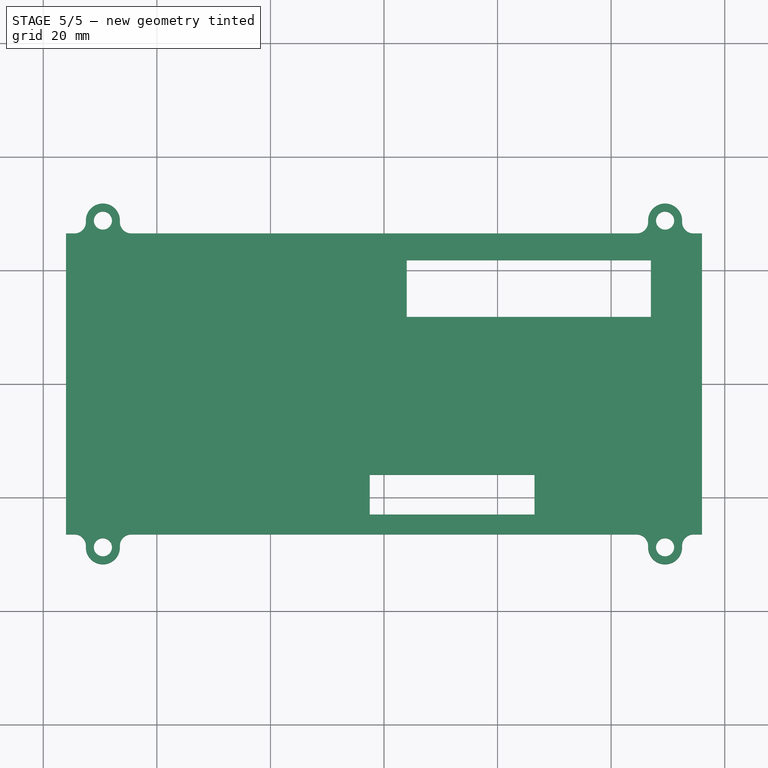
[diagram: stage 5 of 5 — top view after this stage's code; geometry added in this stage tinted green]
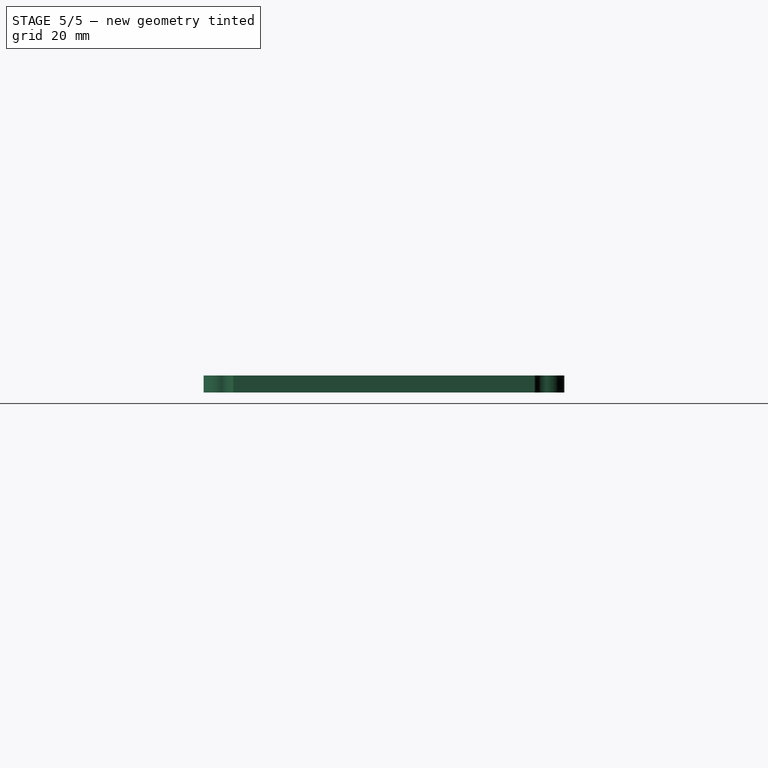
[diagram: stage 5 of 5 — right view after this stage's code; geometry added in this stage tinted green]
FEATURE [PartDesign::Body] Body  label="box"
  Group = -> [Sketch,Pad,Sketch001,Pocket,Sketch002,Pad001,Sketch003,Pocket001,Sketch005,Pocket002,Sketch006,Pocket003,Sketch007,Pocket004,Sketch008,Pad002,Chamfer,Sketch009,Pad003,Fillet,Sketch010,Pocket005,Sketch011,Pad004,Fillet001,Fillet002,Sketch012,Pad005,Sketch013,Pocket006,Chamfer001,Sketch014,Pocket007]
  Origin = -> Origin
  Tip = -> Pocket007
FEATURE [PartDesign::ShapeBinder] ShapeBinder
  Support = -> [Pocket007]
  TraceSupport = false
FEATURE [Sketcher::SketchObject] Sketch015
  ExternalGeometry = -> [ShapeBinder]
  FullyConstrained = true
  MapMode = 5
  Placement = pos=(-1e-16,1.1e-15,21) rot=(0,0,1;0rad)
  Support = -> [ShapeBinder]
  sketch-geometry (4):
    g0: LineSegment StartX=-56 StartY=26.5 StartZ=0 EndX=56 EndY=26.5 EndZ=0
    g1: LineSegment StartX=56 StartY=26.5 StartZ=0 EndX=56 EndY=-26.5 EndZ=0
    g2: LineSegment StartX=56 StartY=-26.5 StartZ=0 EndX=-56 EndY=-26.5 EndZ=0
    g3: LineSegment StartX=-56 StartY=-26.5 StartZ=0 EndX=-56 EndY=26.5 EndZ=0
  constraints (10):
    c: Coincident(g0,g1)
    c: Coincident(g1,g2)
    c: Coincident(g2,g3)
    c: Coincident(g3,g0)
    c: Horizontal(g0)
    c: Horizontal(g2)
    c: Vertical(g1)
    c: Vertical(g3)
    c: Coincident(g0,g-3)
    c: Coincident(g1,g-4)
FEATURE [PartDesign::Pad] Pad006
  Direction = (1,1,1)
  Length = 3
  Length2 = 100
  Profile = -> Sketch015
  Type = 0
FEATURE [Sketcher::SketchObject] Sketch016
  ExternalGeometry = -> [ShapeBinder]
  FullyConstrained = true
  MapMode = 5
  Placement = pos=(-1e-16,1.1e-15,21) rot=(0,0,1;0rad)
  Support = -> [ShapeBinder]
  sketch-geometry (4):
    g0: Circle CenterX=-49.5 CenterY=28.7665 CenterZ=0 NormalX=0 NormalY=0 NormalZ=1 AngleXU=0 Radius=3
    g1: Circle CenterX=49.5 CenterY=28.7665 CenterZ=0 NormalX=0 NormalY=0 NormalZ=1 AngleXU=0 Radius=3
    g2: Circle CenterX=49.5 CenterY=-28.7665 CenterZ=0 NormalX=0 NormalY=0 NormalZ=1 AngleXU=0 Radius=3
    g3: Circle CenterX=-49.5 CenterY=-28.7665 CenterZ=0 NormalX=0 NormalY=0 NormalZ=1 AngleXU=0 Radius=3
  constraints (8):
    c: Coincident(g0,g-3)
    c: Coincident(g1,g-4)
    c: Coincident(g2,g-6)
    c: Coincident(g3,g-5)
    c: Equal(g3,g0)
    c: Equal(g0,g1)
    c: Equal(g1,g2)
    c: Equal(g2,g-4)
FEATURE [PartDesign::Pad] Pad007
  BaseFeature = -> Pad006
  Direction = (1,1,1)
  Length = 3
  Length2 = 100
  Profile = -> Sketch016
  Refine = true
  Type = 0
FEATURE [PartDesign::Fillet] Fillet003
  Base = -> Pad007 [Edge26,Edge33,Edge27,Edge34,Edge24,Edge36,Edge10,Edge2]
  BaseFeature = -> Pad007
  Radius = 2
  SupportTransform = false
FEATURE [Sketcher::SketchObject] Sketch017
  ExternalGeometry = -> [Fillet003]
  FullyConstrained = true
  MapMode = 5
  Placement = pos=(0,1e-16,24) rot=(0,0,1;0rad)
  Support = -> [Fillet003]
  sketch-geometry (4):
    g0: Circle CenterX=-49.5 CenterY=28.7665 CenterZ=0 NormalX=0 NormalY=0 NormalZ=1 AngleXU=0 Radius=1.6
    g1: Circle CenterX=49.5 CenterY=28.7665 CenterZ=0 NormalX=0 NormalY=0 NormalZ=1 AngleXU=0 Radius=1.6
    g2: Circle CenterX=49.5 CenterY=-28.7665 CenterZ=0 NormalX=0 NormalY=0 NormalZ=1 AngleXU=0 Radius=1.6
    g3: Circle CenterX=-49.5 CenterY=-28.7665 CenterZ=0 NormalX=0 NormalY=0 NormalZ=1 AngleXU=0 Radius=1.6
  constraints (8):
    c: Coincident(g0,g-3)
    c: Coincident(g1,g-4)
    c: Coincident(g2,g-5)
    c: Coincident(g3,g-6)
    c: Radius(g3) = 1.6
    c: Equal(g3,g0)
    c: Equal(g3,g1)
    c: Equal(g3,g2)
FEATURE [PartDesign::Pocket] Pocket008
  BaseFeature = -> Fillet003
  Length = 5
  Length2 = 100
  Profile = -> Sketch017
  Type = 0
FEATURE [Sketcher::SketchObject] Sketch018
  FullyConstrained = true
  MapMode = 5
  Placement = pos=(0,1e-16,24) rot=(0,0,1;0rad)
  Support = -> [Pocket008]
  sketch-geometry (12):
    g0: LineSegment StartX=-52.5 StartY=23 StartZ=0 EndX=52.5 EndY=23 EndZ=0
    g1: LineSegment StartX=52.5 StartY=23 StartZ=0 EndX=52.5 EndY=-23 EndZ=0
    g2: LineSegment StartX=52.5 StartY=-23 StartZ=0 EndX=-52.5 EndY=-23 EndZ=0
    g3: LineSegment StartX=-52.5 StartY=-23 StartZ=0 EndX=-52.5 EndY=23 EndZ=0
    g4: LineSegment StartX=4 StartY=21.8 StartZ=0 EndX=47 EndY=21.8 EndZ=0
    g5: LineSegment StartX=47 StartY=21.8 StartZ=0 EndX=47 EndY=11.8 EndZ=0
    g6: LineSegment StartX=47 StartY=11.8 StartZ=0 EndX=4 EndY=11.8 EndZ=0
    g7: LineSegment StartX=4 StartY=11.8 StartZ=0 EndX=4 EndY=21.8 EndZ=0
    g8: LineSegment StartX=-2.5 StartY=-16 StartZ=0 EndX=26.5 EndY=-16 EndZ=0
    g9: LineSegment StartX=26.5 StartY=-16 StartZ=0 EndX=26.5 EndY=-23 EndZ=0
    g10: LineSegment StartX=26.5 StartY=-23 StartZ=0 EndX=-2.5 EndY=-23 EndZ=0
    g11: LineSegment StartX=-2.5 StartY=-23 StartZ=0 EndX=-2.5 EndY=-16 EndZ=0
  constraints (34):
    c: Coincident(g0,g1)
    c: Coincident(g1,g2)
    c: Coincident(g2,g3)
    c: Coincident(g3,g0)
    c: Horizontal(g2)
    c: Vertical(g3)
    c: Symmetric(g0,g0,g-2)
    c: Symmetric(g0,g1,g-1)
    c: DistanceY(g1,g1) = 46
    c: DistanceX(g0,g0) = 105
    c: Coincident(g4,g5)
    c: Coincident(g5,g6)
    c: Coincident(g6,g7)
    c: Coincident(g7,g4)
    c: Horizontal(g4)
    c: Horizontal(g6)
    c: Vertical(g5)
    c: Vertical(g7)
    c: Distance(g5,g1) = 5.5
    c: Distance(g4,g0) = 1.2
    c: DistanceX(g6,g6) = 43
    c: DistanceY(g7,g7) = 10
    c: Coincident(g8,g9)
    c: Coincident(g9,g10)
    c: Coincident(g10,g11)
    c: Coincident(g11,g8)
    c: Horizontal(g8)
    c: Horizontal(g10)
    c: Vertical(g9)
    c: Vertical(g11)
    c: PointOnObject(g9,g2)
    c: Distance(g1,g9) = 26
    c: DistanceX(g8,g8) = 29
    c: DistanceY(g11,g11) = 7
FEATURE [PartDesign::Pocket] Pocket009
  BaseFeature = -> Pocket008
  Length = 5
  Length2 = 100
  Profile = -> Sketch018
  Type = 0
FEATURE [PartDesign::Body] Body001  label="lid"
  Group = -> [ShapeBinder,Sketch015,Pad006,Sketch016,Pad007,Fillet003,Sketch017,Pocket008,Sketch018,Pocket009]
  Origin = -> Origin001
  Tip = -> Pocket009
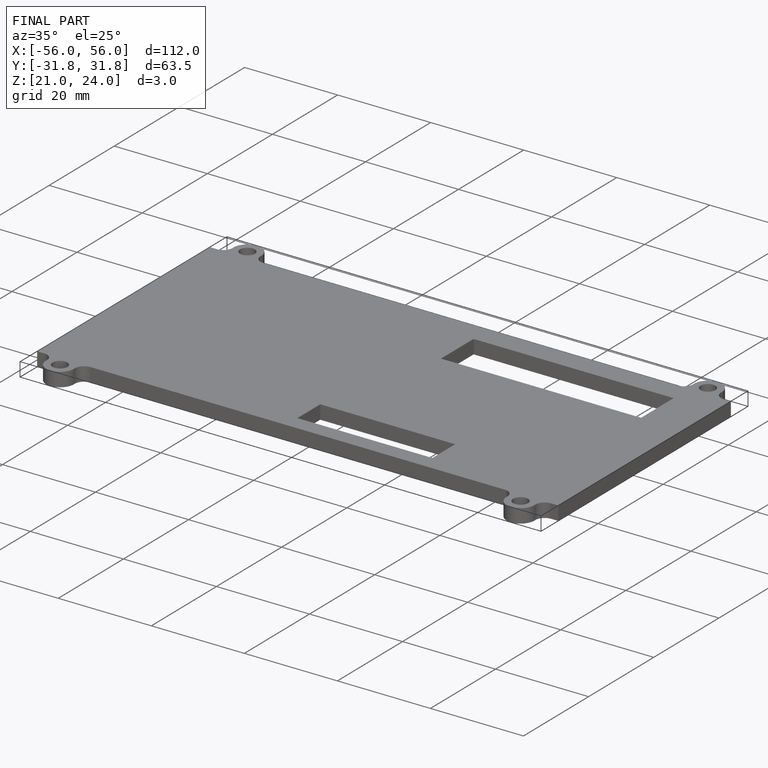
[diagram: finished part — iso view with bounding-box wireframe]
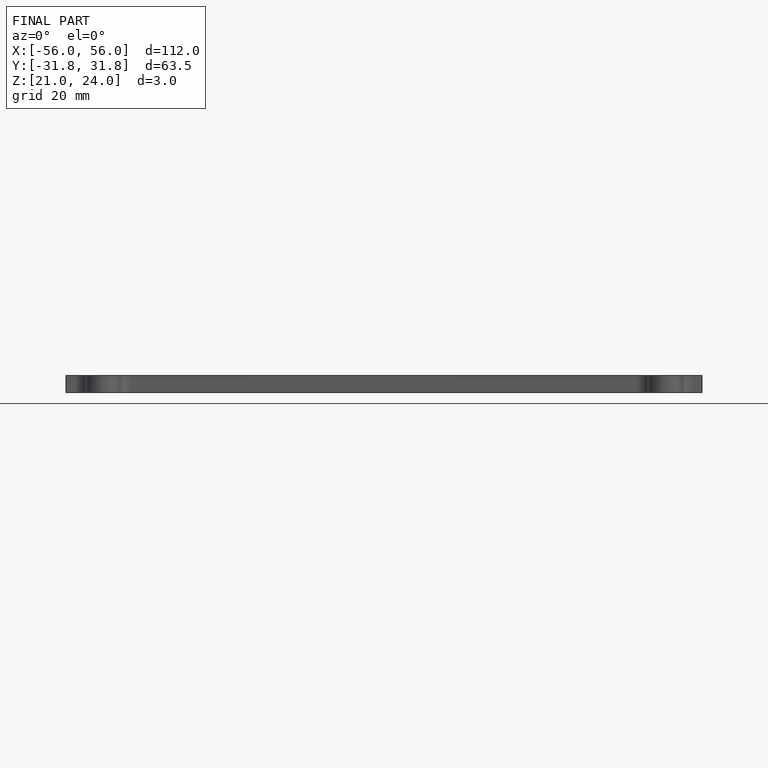
[diagram: finished part — front view with bounding-box wireframe]
